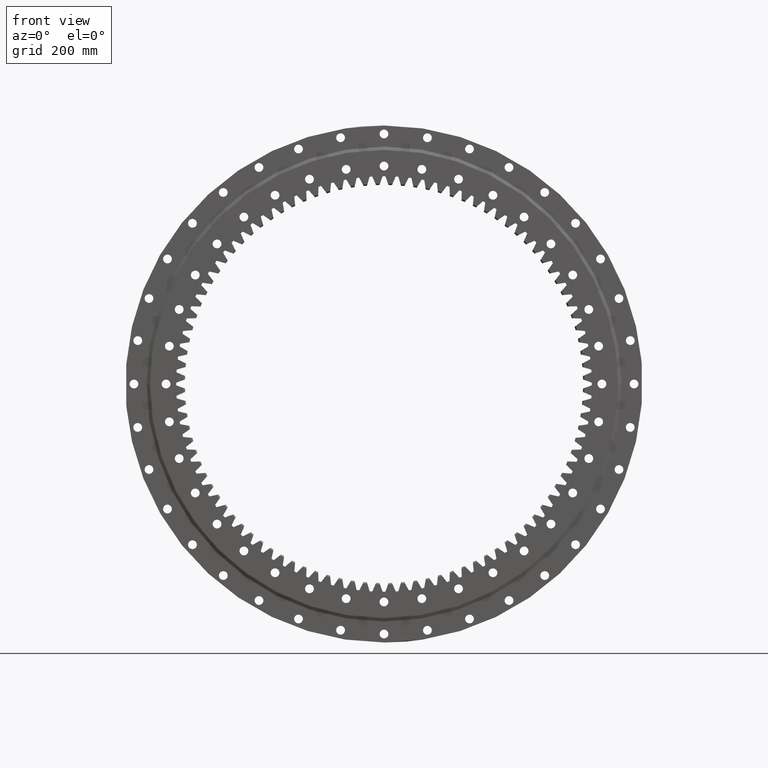
[diagram: clean part render]
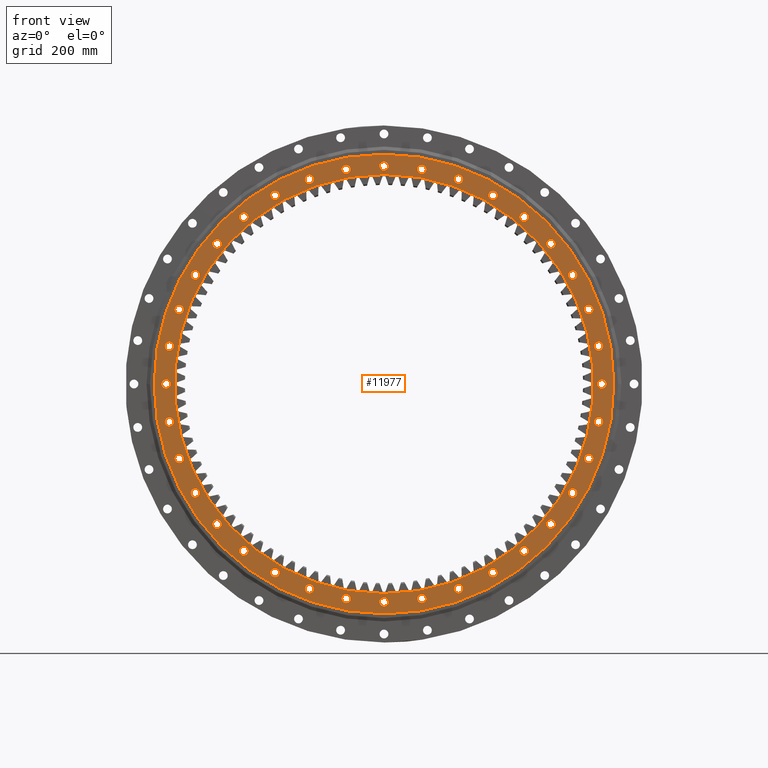
[diagram: same view with one face highlighted and labeled with its STEP entity id]
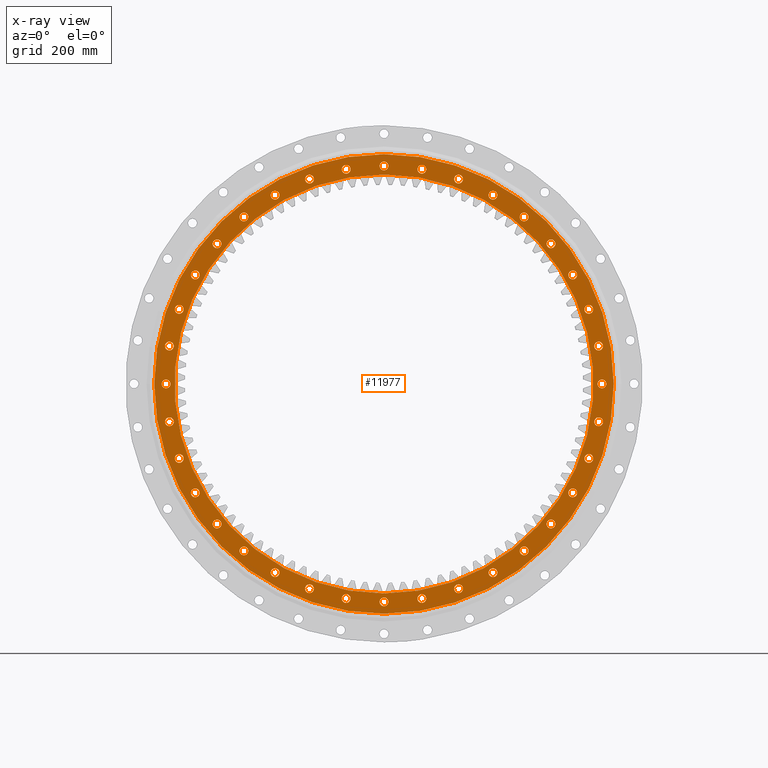
[diagram: x-ray of the same camera — body ghosted, the highlighted face saturated]
A machine part, front view. The second image highlights one B-rep face of the part: STEP entity #11977.
The next image is the same camera in x-ray: the body ghosted, the highlighted face saturated — about 0% of this face is hidden behind the body in this view.
In plain terms, the highlighted planar face has unit normal (0, 1, -0).
Its self-contained STEP definition (entity closure, byte-faithful):
#46 = VERTEX_POINT ( 'NONE', #4877 ) ;
#64 = AXIS2_PLACEMENT_3D ( 'NONE', #1920, #17623, #4175 ) ;
#80 = CIRCLE ( 'NONE', #2478, 13.00000000000003000 ) ;
#126 = AXIS2_PLACEMENT_3D ( 'NONE', #27517, #13944, #513 ) ;
#165 = DIRECTION ( 'NONE',  ( 0.9848077530122073500, 0.0000000000000000000, -0.1736481776669343600 ) ) ;
#177 = CARTESIAN_POINT ( 'NONE',  ( -322.5000000000009100, -64.99999999999990100, 571.5863854409624300 ) ) ;
#197 = CARTESIAN_POINT ( 'NONE',  ( -220.6029924450521400, -65.00000000000000000, -606.1017404069125400 ) ) ;
#245 = CIRCLE ( 'NONE', #19429, 13.00000000000001200 ) ;
#302 = AXIS2_PLACEMENT_3D ( 'NONE', #3889, #3896, #2134 ) ;
#319 = EDGE_LOOP ( 'NONE', ( #24717, #27611 ) ) ;
#359 = CARTESIAN_POINT ( 'NONE',  ( 220.6029924450480500, -64.99999999999994300, 593.1017404069140200 ) ) ;
#419 = CARTESIAN_POINT ( 'NONE',  ( 635.2010006928756000, -65.00000000000004300, -112.0030745951632800 ) ) ;
#429 = DIRECTION ( 'NONE',  ( -0.8660254037844431500, 0.0000000000000000000, -0.4999999999999921200 ) ) ;
#470 = EDGE_CURVE ( 'NONE', #10462, #5548, #9288, .T. ) ;
#506 = DIRECTION ( 'NONE',  ( -7.038473828917531600E-015, 0.0000000000000000000, -1.000000000000000000 ) ) ;
#512 = DIRECTION ( 'NONE',  ( -7.914688832368751900E-017, -1.000000000000000000, 6.617654413443253200E-017 ) ) ;
#513 = DIRECTION ( 'NONE',  ( 0.5000000000000022200, 0.0000000000000000000, 0.8660254037844372600 ) ) ;
#616 = CARTESIAN_POINT ( 'NONE',  ( 322.5000000000047700, -65.00000000000004300, -558.5863854409601600 ) ) ;
#660 = FACE_BOUND ( 'NONE', #3521, .T. ) ;
#676 = CARTESIAN_POINT ( 'NONE',  ( -494.0986658117383900, -64.99999999999995700, -401.5980082478207000 ) ) ;
#808 = EDGE_CURVE ( 'NONE', #28281, #21178, #7530, .T. ) ;
#838 = CARTESIAN_POINT ( 'NONE',  ( -112.0030745951655300, -64.99999999999998600, -635.2010006928752500 ) ) ;
#902 = ORIENTED_EDGE ( 'NONE', *, *, #10769, .F. ) ;
#916 = EDGE_LOOP ( 'NONE', ( #15448, #25351 ) ) ;
#929 = AXIS2_PLACEMENT_3D ( 'NONE', #616, #7305, #28946 ) ;
#931 = DIRECTION ( 'NONE',  ( -7.914688832368751900E-017, -1.000000000000000000, 6.617654413443253200E-017 ) ) ;
#948 = ORIENTED_EDGE ( 'NONE', *, *, #1432, .F. ) ;
#976 = VERTEX_POINT ( 'NONE', #18165 ) ;
#1009 = AXIS2_PLACEMENT_3D ( 'NONE', #16906, #3452, #19158 ) ;
#1156 = DIRECTION ( 'NONE',  ( -0.1736481776669374600, 0.0000000000000000000, -0.9848077530122068000 ) ) ;
#1234 = CARTESIAN_POINT ( 'NONE',  ( 645.0000000000000000, -65.00000000000002800, 7.042364726122071100E-012 ) ) ;
#1239 = CIRCLE ( 'NONE', #7258, 620.0000000000001100 ) ;
#1270 = AXIS2_PLACEMENT_3D ( 'NONE', #4223, #4319, #4404 ) ;
#1308 = EDGE_LOOP ( 'NONE', ( #2955, #20577 ) ) ;
#1344 = DIRECTION ( 'NONE',  ( -7.914688832368751900E-017, -1.000000000000000000, 6.617654413443254400E-017 ) ) ;
#1419 = DIRECTION ( 'NONE',  ( -5.551115123125783900E-017, -6.715058616684413500E-017, -1.000000000000000000 ) ) ;
#1432 = EDGE_CURVE ( 'NONE', #25501, #6504, #27256, .T. ) ;
#1438 = VERTEX_POINT ( 'NONE', #27134 ) ;
#1498 = CARTESIAN_POINT ( 'NONE',  ( -558.5863854409638000, -64.99999999999990100, 335.4999999999984700 ) ) ;
#1500 = DIRECTION ( 'NONE',  ( -0.9396926207859115400, 0.0000000000000000000, -0.3420201433256600500 ) ) ;
#1534 = CARTESIAN_POINT ( 'NONE',  ( 494.0986658117448100, -65.00000000000004300, -414.5980082478131400 ) ) ;
#1557 = EDGE_CURVE ( 'NONE', #9797, #976, #23646, .T. ) ;
#1596 = EDGE_CURVE ( 'NONE', #2013, #6705, #22939, .T. ) ;
#1661 = CIRCLE ( 'NONE', #11563, 12.99999999999995200 ) ;
#1682 = EDGE_CURVE ( 'NONE', #6504, #25501, #26163, .T. ) ;
#1703 = CARTESIAN_POINT ( 'NONE',  ( -606.1017404069098100, -64.99999999999992900, -220.6029924450595600 ) ) ;
#1726 = DIRECTION ( 'NONE',  ( 1.000000000000000000, 0.0000000000000000000, -3.546992490074405800E-015 ) ) ;
#1836 = AXIS2_PLACEMENT_3D ( 'NONE', #23664, #23719, #23831 ) ;
#1918 = VERTEX_POINT ( 'NONE', #24658 ) ;
#1920 = CARTESIAN_POINT ( 'NONE',  ( -606.1017404069098100, -64.99999999999992900, -220.6029924450595600 ) ) ;
#1950 = CIRCLE ( 'NONE', #22102, 13.00000000000001100 ) ;
#1992 = AXIS2_PLACEMENT_3D ( 'NONE', #26485, #26386, #26675 ) ;
#2013 = VERTEX_POINT ( 'NONE', #16854 ) ;
#2019 = CARTESIAN_POINT ( 'NONE',  ( 635.2010006928728700, -65.00000000000001400, 99.00307459517729600 ) ) ;
#2108 = DIRECTION ( 'NONE',  ( -7.914688832368751900E-017, -1.000000000000000000, 6.617654413443253200E-017 ) ) ;
#2116 = DIRECTION ( 'NONE',  ( 0.1736481776669250300, 0.0000000000000000000, -0.9848077530122090200 ) ) ;
#2124 = FACE_BOUND ( 'NONE', #8397, .T. ) ;
#2134 = DIRECTION ( 'NONE',  ( 0.7660444431189753500, 0.0000000000000000000, -0.6427876096865425800 ) ) ;
#2136 = CIRCLE ( 'NONE', #27348, 12.99999999999999500 ) ;
#2143 = CARTESIAN_POINT ( 'NONE',  ( 558.5863854409661800, -65.00000000000002800, -335.4999999999946600 ) ) ;
#2268 = CARTESIAN_POINT ( 'NONE',  ( -606.1017404069117400, -64.99999999999991500, 220.6029924450542400 ) ) ;
#2289 = CIRCLE ( 'NONE', #26123, 12.99999999999998000 ) ;
#2336 = CIRCLE ( 'NONE', #8899, 12.99999999999999500 ) ;
#2342 = ORIENTED_EDGE ( 'NONE', *, *, #17370, .F. ) ;
#2352 = CARTESIAN_POINT ( 'NONE',  ( -494.0986658117421400, -64.99999999999990100, 414.5980082478164400 ) ) ;
#2392 = DIRECTION ( 'NONE',  ( -7.914688832368751900E-017, -1.000000000000000000, 6.617654413443253200E-017 ) ) ;
#2438 = DIRECTION ( 'NONE',  ( -0.3420201433256751500, 0.0000000000000000000, -0.9396926207859061000 ) ) ;
#2457 = DIRECTION ( 'NONE',  ( -7.914688832368751900E-017, -1.000000000000000000, 6.617654413443253200E-017 ) ) ;
#2478 = AXIS2_PLACEMENT_3D ( 'NONE', #28631, #28570, #28708 ) ;
#2511 = EDGE_CURVE ( 'NONE', #26646, #22815, #7093, .T. ) ;
#2534 = CARTESIAN_POINT ( 'NONE',  ( 606.1017404069132200, -65.00000000000001400, -220.6029924450501200 ) ) ;
#2615 = CARTESIAN_POINT ( 'NONE',  ( 606.1017404069132200, -65.00000000000001400, -233.6029924450501500 ) ) ;
#2640 = DIRECTION ( 'NONE',  ( -1.000000000000000000, 0.0000000000000000000, 1.052995516776065800E-014 ) ) ;
#2737 = CARTESIAN_POINT ( 'NONE',  ( -645.0000000000000000, -64.99999999999991500, -2.529750848276954000E-012 ) ) ;
#2769 = VERTEX_POINT ( 'NONE', #9295 ) ;
#2804 = DIRECTION ( 'NONE',  ( -0.9848077530122062400, 0.0000000000000000000, 0.1736481776669405700 ) ) ;
#2922 = EDGE_CURVE ( 'NONE', #5186, #24064, #22212, .T. ) ;
#2928 = EDGE_CURVE ( 'NONE', #17073, #21109, #9557, .T. ) ;
#2955 = ORIENTED_EDGE ( 'NONE', *, *, #20176, .F. ) ;
#3008 = EDGE_CURVE ( 'NONE', #19489, #46, #8158, .T. ) ;
#3042 = EDGE_CURVE ( 'NONE', #22429, #19875, #12710, .T. ) ;
#3070 = FACE_OUTER_BOUND ( 'NONE', #18471, .T. ) ;
#3106 = VERTEX_POINT ( 'NONE', #16803 ) ;
#3208 = CARTESIAN_POINT ( 'NONE',  ( -220.6029924450521400, -65.00000000000000000, -606.1017404069125400 ) ) ;
#3257 = AXIS2_PLACEMENT_3D ( 'NONE', #1234, #14670, #1726 ) ;
#3340 = DIRECTION ( 'NONE',  ( 0.5000000000000022200, 0.0000000000000000000, 0.8660254037844372600 ) ) ;
#3354 = VERTEX_POINT ( 'NONE', #23495 ) ;
#3429 = CARTESIAN_POINT ( 'NONE',  ( -112.0030745951708000, -64.99999999999991500, 635.2010006928742300 ) ) ;
#3444 = EDGE_LOOP ( 'NONE', ( #5876, #902 ) ) ;
#3452 = DIRECTION ( 'NONE',  ( -7.914688832368751900E-017, -1.000000000000000000, 6.617654413443253200E-017 ) ) ;
#3471 = EDGE_CURVE ( 'NONE', #20315, #9083, #2136, .T. ) ;
#3500 = DIRECTION ( 'NONE',  ( -7.914688832368751900E-017, -1.000000000000000000, 6.617654413443251900E-017 ) ) ;
#3513 = DIRECTION ( 'NONE',  ( -0.8660254037844431500, 0.0000000000000000000, -0.4999999999999921200 ) ) ;
#3521 = EDGE_LOOP ( 'NONE', ( #28526, #17840 ) ) ;
#3524 = AXIS2_PLACEMENT_3D ( 'NONE', #22307, #20587, #8931 ) ;
#3535 = DIRECTION ( 'NONE',  ( -0.1736481776669163100, 0.0000000000000000000, 0.9848077530122104600 ) ) ;
#3614 = DIRECTION ( 'NONE',  ( -7.914688832368751900E-017, -1.000000000000000000, 6.617654413443253200E-017 ) ) ;
#3620 = VERTEX_POINT ( 'NONE', #27292 ) ;
#3637 = CARTESIAN_POINT ( 'NONE',  ( 2.954938013147308800E-014, -64.99999999999992900, 620.0000000000001100 ) ) ;
#3669 = CARTESIAN_POINT ( 'NONE',  ( -558.5863854409612900, -64.99999999999994300, -322.5000000000028400 ) ) ;
#3739 = EDGE_LOOP ( 'NONE', ( #5858, #20340 ) ) ;
#3769 = FACE_BOUND ( 'NONE', #3739, .T. ) ;
#3781 = DIRECTION ( 'NONE',  ( 0.7660444431189753500, 0.0000000000000000000, -0.6427876096865425800 ) ) ;
#3793 = VERTEX_POINT ( 'NONE', #12211 ) ;
#3794 = EDGE_LOOP ( 'NONE', ( #12521, #27401 ) ) ;
#3889 = CARTESIAN_POINT ( 'NONE',  ( 494.0986658117448100, -65.00000000000004300, -414.5980082478131400 ) ) ;
#3892 = DIRECTION ( 'NONE',  ( -7.914688832368751900E-017, -1.000000000000000000, 6.617654413443251900E-017 ) ) ;
#3896 = DIRECTION ( 'NONE',  ( -7.914688832368751900E-017, -1.000000000000000000, 6.617654413443253200E-017 ) ) ;
#3936 = CIRCLE ( 'NONE', #8647, 12.99999999999997500 ) ;
#4110 = ORIENTED_EDGE ( 'NONE', *, *, #16761, .F. ) ;
#4175 = DIRECTION ( 'NONE',  ( -0.9396926207859115400, 0.0000000000000000000, -0.3420201433256600500 ) ) ;
#4180 = ORIENTED_EDGE ( 'NONE', *, *, #15143, .F. ) ;
#4199 = VERTEX_POINT ( 'NONE', #11007 ) ;
#4223 = CARTESIAN_POINT ( 'NONE',  ( -112.0030745951708000, -64.99999999999991500, 635.2010006928742300 ) ) ;
#4264 = EDGE_CURVE ( 'NONE', #17436, #7946, #20024, .T. ) ;
#4289 = DIRECTION ( 'NONE',  ( -7.914688832368751900E-017, -1.000000000000000000, 6.617654413443253200E-017 ) ) ;
#4319 = DIRECTION ( 'NONE',  ( -7.914688832368751900E-017, -1.000000000000000000, 6.617654413443251900E-017 ) ) ;
#4347 = VERTEX_POINT ( 'NONE', #5143 ) ;
#4404 = DIRECTION ( 'NONE',  ( -0.1736481776669163100, 0.0000000000000000000, 0.9848077530122104600 ) ) ;
#4414 = CIRCLE ( 'NONE', #9280, 13.00000000000005900 ) ;
#4477 = CIRCLE ( 'NONE', #22634, 13.00000000000001200 ) ;
#4496 = EDGE_LOOP ( 'NONE', ( #11451, #5100 ) ) ;
#4498 = FACE_BOUND ( 'NONE', #23144, .T. ) ;
#4511 = CARTESIAN_POINT ( 'NONE',  ( -5.144547741039686300E-015, -64.99999999999997200, 2.657299779401134300E-015 ) ) ;
#4531 = CARTESIAN_POINT ( 'NONE',  ( -220.6029924450574800, -64.99999999999991500, 606.1017404069106100 ) ) ;
#4568 = CARTESIAN_POINT ( 'NONE',  ( -645.0000000000000000, -64.99999999999991500, -2.529750848276954000E-012 ) ) ;
#4574 = EDGE_CURVE ( 'NONE', #6705, #2013, #9848, .T. ) ;
#4611 = DIRECTION ( 'NONE',  ( -7.914688832368751900E-017, -1.000000000000000000, 6.617654413443253200E-017 ) ) ;
#4620 = DIRECTION ( 'NONE',  ( -0.7660444431189714600, 0.0000000000000000000, 0.6427876096865471300 ) ) ;
#4720 = CARTESIAN_POINT ( 'NONE',  ( 322.5000000000047700, -65.00000000000004300, -571.5863854409601600 ) ) ;
#4731 = VERTEX_POINT ( 'NONE', #13989 ) ;
#4751 = ORIENTED_EDGE ( 'NONE', *, *, #7561, .F. ) ;
#4784 = DIRECTION ( 'NONE',  ( 0.9396926207859074300, 0.0000000000000000000, -0.3420201433256713200 ) ) ;
#4800 = ORIENTED_EDGE ( 'NONE', *, *, #27665, .F. ) ;
#4877 = CARTESIAN_POINT ( 'NONE',  ( 635.2010006928756000, -65.00000000000004300, -125.0030745951633000 ) ) ;
#4935 = VERTEX_POINT ( 'NONE', #27250 ) ;
#5045 = CARTESIAN_POINT ( 'NONE',  ( -645.0000000000000000, -64.99999999999991500, -13.00000000000253300 ) ) ;
#5064 = CIRCLE ( 'NONE', #7918, 13.00000000000000900 ) ;
#5100 = ORIENTED_EDGE ( 'NONE', *, *, #22996, .F. ) ;
#5143 = CARTESIAN_POINT ( 'NONE',  ( -494.0986658117421400, -64.99999999999990100, 401.5980082478164400 ) ) ;
#5186 = VERTEX_POINT ( 'NONE', #13709 ) ;
#5200 = FACE_BOUND ( 'NONE', #6606, .T. ) ;
#5258 = EDGE_CURVE ( 'NONE', #28454, #1438, #5590, .T. ) ;
#5259 = CARTESIAN_POINT ( 'NONE',  ( 645.0000000000000000, -65.00000000000002800, 13.00000000000704700 ) ) ;
#5264 = CARTESIAN_POINT ( 'NONE',  ( -5.144547741039686300E-015, -64.99999999999997200, 2.657299779401134300E-015 ) ) ;
#5302 = DIRECTION ( 'NONE',  ( 7.914688832368751900E-017, 1.000000000000000000, -6.617654413443253200E-017 ) ) ;
#5366 = DIRECTION ( 'NONE',  ( -5.551115123125783900E-017, -6.122553444624025500E-017, -1.000000000000000000 ) ) ;
#5382 = CARTESIAN_POINT ( 'NONE',  ( 558.5863854409590200, -64.99999999999998600, 335.5000000000068200 ) ) ;
#5435 = DIRECTION ( 'NONE',  ( -7.914688832368751900E-017, -1.000000000000000000, 6.617654413443251900E-017 ) ) ;
#5470 = CARTESIAN_POINT ( 'NONE',  ( 494.0986658117356000, -64.99999999999998600, 427.5980082478241100 ) ) ;
#5511 = ORIENTED_EDGE ( 'NONE', *, *, #5258, .F. ) ;
#5548 = VERTEX_POINT ( 'NONE', #6805 ) ;
#5565 = CIRCLE ( 'NONE', #64, 12.99999999999998400 ) ;
#5590 = CIRCLE ( 'NONE', #28002, 12.99999999999996400 ) ;
#5671 = VERTEX_POINT ( 'NONE', #17251 ) ;
#5672 = AXIS2_PLACEMENT_3D ( 'NONE', #13051, #28913, #15286 ) ;
#5685 = DIRECTION ( 'NONE',  ( -7.914688832368751900E-017, -1.000000000000000000, 6.617654413443253200E-017 ) ) ;
#5692 = CIRCLE ( 'NONE', #8892, 13.00000000000003000 ) ;
#5710 = VERTEX_POINT ( 'NONE', #10492 ) ;
#5769 = DIRECTION ( 'NONE',  ( -7.914688832368751900E-017, -1.000000000000000000, 6.617654413443253200E-017 ) ) ;
#5834 = DIRECTION ( 'NONE',  ( -1.000000000000000000, 0.0000000000000000000, 1.052995516776065800E-014 ) ) ;
#5858 = ORIENTED_EDGE ( 'NONE', *, *, #24920, .F. ) ;
#5876 = ORIENTED_EDGE ( 'NONE', *, *, #3008, .F. ) ;
#5925 = FACE_BOUND ( 'NONE', #23303, .T. ) ;
#6009 = DIRECTION ( 'NONE',  ( -0.6427876096865307000, 0.0000000000000000000, 0.7660444431189851200 ) ) ;
#6079 = CARTESIAN_POINT ( 'NONE',  ( 414.5980082478225200, -65.00000000000002800, -481.0986658117369600 ) ) ;
#6080 = CIRCLE ( 'NONE', #25805, 13.00000000000001200 ) ;
#6133 = EDGE_CURVE ( 'NONE', #3793, #25595, #17825, .T. ) ;
#6167 = CARTESIAN_POINT ( 'NONE',  ( -414.5980082478191100, -64.99999999999991500, 494.0986658117400300 ) ) ;
#6185 = ORIENTED_EDGE ( 'NONE', *, *, #23025, .F. ) ;
#6198 = DIRECTION ( 'NONE',  ( -7.914688832368751900E-017, -1.000000000000000000, 6.617654413443253200E-017 ) ) ;
#6234 = EDGE_CURVE ( 'NONE', #21940, #3106, #4477, .T. ) ;
#6301 = DIRECTION ( 'NONE',  ( -7.914688832368751900E-017, -1.000000000000000000, 6.617654413443251900E-017 ) ) ;
#6324 = DIRECTION ( 'NONE',  ( -0.3420201433256751500, 0.0000000000000000000, -0.9396926207859061000 ) ) ;
#6349 = VERTEX_POINT ( 'NONE', #21455 ) ;
#6390 = EDGE_CURVE ( 'NONE', #20098, #5671, #1661, .T. ) ;
#6418 = DIRECTION ( 'NONE',  ( -7.914688832368751900E-017, -1.000000000000000000, 6.617654413443253200E-017 ) ) ;
#6476 = CARTESIAN_POINT ( 'NONE',  ( 220.6029924450614600, -65.00000000000002800, -606.1017404069091300 ) ) ;
#6504 = VERTEX_POINT ( 'NONE', #1498 ) ;
#6548 = EDGE_LOOP ( 'NONE', ( #15364, #25624 ) ) ;
#6567 = VERTEX_POINT ( 'NONE', #177 ) ;
#6606 = EDGE_LOOP ( 'NONE', ( #11954, #10535 ) ) ;
#6705 = VERTEX_POINT ( 'NONE', #16901 ) ;
#6750 = AXIS2_PLACEMENT_3D ( 'NONE', #419, #512, #165 ) ;
#6805 = CARTESIAN_POINT ( 'NONE',  ( 494.0986658117448100, -65.00000000000004300, -427.5980082478131400 ) ) ;
#6813 = DIRECTION ( 'NONE',  ( -0.3420201433256581100, 0.0000000000000000000, 0.9396926207859123100 ) ) ;
#6913 = ORIENTED_EDGE ( 'NONE', *, *, #13870, .F. ) ;
#6927 = DIRECTION ( 'NONE',  ( -7.914688832368751900E-017, -1.000000000000000000, 6.617654413443253200E-017 ) ) ;
#6939 = EDGE_LOOP ( 'NONE', ( #16688, #13575 ) ) ;
#6940 = ORIENTED_EDGE ( 'NONE', *, *, #11843, .F. ) ;
#6949 = CARTESIAN_POINT ( 'NONE',  ( 3.319977997195166100E-014, -64.99999999999991500, 690.7500000000000000 ) ) ;
#7033 = DIRECTION ( 'NONE',  ( 0.3420201433256638300, 0.0000000000000000000, -0.9396926207859102000 ) ) ;
#7034 = EDGE_CURVE ( 'NONE', #25127, #29244, #245, .T. ) ;
#7091 = DIRECTION ( 'NONE',  ( 7.914688832368751900E-017, 1.000000000000000000, -6.617654413443253200E-017 ) ) ;
#7093 = CIRCLE ( 'NONE', #1836, 13.00000000000003900 ) ;
#7123 = DIRECTION ( 'NONE',  ( -5.551115123125783900E-017, -6.617654413443253200E-017, -1.000000000000000000 ) ) ;
#7258 = AXIS2_PLACEMENT_3D ( 'NONE', #19286, #12099, #12119 ) ;
#7287 = CIRCLE ( 'NONE', #1270, 13.00000000000005300 ) ;
#7305 = DIRECTION ( 'NONE',  ( -7.914688832368751900E-017, -1.000000000000000000, 6.617654413443251900E-017 ) ) ;
#7346 = ORIENTED_EDGE ( 'NONE', *, *, #9778, .F. ) ;
#7421 = EDGE_CURVE ( 'NONE', #21808, #6567, #10392, .T. ) ;
#7500 = VERTEX_POINT ( 'NONE', #14435 ) ;
#7502 = CARTESIAN_POINT ( 'NONE',  ( 635.2010006928728700, -65.00000000000001400, 112.0030745951773100 ) ) ;
#7530 = CIRCLE ( 'NONE', #11778, 12.99999999999999800 ) ;
#7543 = CARTESIAN_POINT ( 'NONE',  ( 414.5980082478225200, -65.00000000000002800, -494.0986658117370200 ) ) ;
#7561 = EDGE_CURVE ( 'NONE', #10077, #23732, #25552, .T. ) ;
#7569 = CARTESIAN_POINT ( 'NONE',  ( -635.2010006928746900, -64.99999999999990100, 125.0030745951674600 ) ) ;
#7705 = ORIENTED_EDGE ( 'NONE', *, *, #2928, .F. ) ;
#7735 = CARTESIAN_POINT ( 'NONE',  ( 322.5000000000047700, -65.00000000000004300, -545.5863854409601600 ) ) ;
#7743 = FACE_BOUND ( 'NONE', #27461, .T. ) ;
#7835 = CIRCLE ( 'NONE', #20264, 680.0000000000000000 ) ;
#7861 = EDGE_CURVE ( 'NONE', #10517, #23215, #1239, .T. ) ;
#7873 = CARTESIAN_POINT ( 'NONE',  ( -645.0000000000000000, -64.99999999999991500, 12.99999999999747600 ) ) ;
#7895 = CARTESIAN_POINT ( 'NONE',  ( 112.0030745951752200, -65.00000000000001400, -648.2010006928732100 ) ) ;
#7918 = AXIS2_PLACEMENT_3D ( 'NONE', #20951, #20862, #21020 ) ;
#7946 = VERTEX_POINT ( 'NONE', #27294 ) ;
#7976 = ORIENTED_EDGE ( 'NONE', *, *, #1682, .F. ) ;
#8009 = ORIENTED_EDGE ( 'NONE', *, *, #12877, .F. ) ;
#8013 = ORIENTED_EDGE ( 'NONE', *, *, #6234, .F. ) ;
#8016 = DIRECTION ( 'NONE',  ( -7.914688832368751900E-017, -1.000000000000000000, 6.617654413443253200E-017 ) ) ;
#8023 = CARTESIAN_POINT ( 'NONE',  ( -9.295213262048194800E-012, -64.99999999999992900, 645.0000000000000000 ) ) ;
#8120 = FACE_BOUND ( 'NONE', #18062, .T. ) ;
#8158 = CIRCLE ( 'NONE', #6750, 12.99999999999998200 ) ;
#8213 = DIRECTION ( 'NONE',  ( 0.9848077530122084600, 0.0000000000000000000, 0.1736481776669281400 ) ) ;
#8242 = DIRECTION ( 'NONE',  ( 5.551115123128011200E-017, 0.0000000000000000000, 1.000000000000000000 ) ) ;
#8260 = AXIS2_PLACEMENT_3D ( 'NONE', #10719, #10588, #23469 ) ;
#8305 = AXIS2_PLACEMENT_3D ( 'NONE', #4531, #20225, #6813 ) ;
#8343 = CIRCLE ( 'NONE', #21974, 12.99999999999998900 ) ;
#8371 = EDGE_LOOP ( 'NONE', ( #28910, #27466 ) ) ;
#8397 = EDGE_LOOP ( 'NONE', ( #5511, #25594 ) ) ;
#8415 = AXIS2_PLACEMENT_3D ( 'NONE', #27507, #13935, #506 ) ;
#8583 = CIRCLE ( 'NONE', #14409, 13.00000000000001200 ) ;
#8647 = AXIS2_PLACEMENT_3D ( 'NONE', #17730, #4289, #19989 ) ;
#8713 = DIRECTION ( 'NONE',  ( -7.914688832368751900E-017, -1.000000000000000000, 6.617654413443253200E-017 ) ) ;
#8815 = CARTESIAN_POINT ( 'NONE',  ( 414.5980082478114900, -64.99999999999997200, 507.0986658117463400 ) ) ;
#8864 = CIRCLE ( 'NONE', #17090, 620.0000000000001100 ) ;
#8892 = AXIS2_PLACEMENT_3D ( 'NONE', #15119, #15095, #15056 ) ;
#8894 = VERTEX_POINT ( 'NONE', #7895 ) ;
#8899 = AXIS2_PLACEMENT_3D ( 'NONE', #27420, #13861, #429 ) ;
#8931 = DIRECTION ( 'NONE',  ( -0.3420201433256581100, 0.0000000000000000000, 0.9396926207859123100 ) ) ;
#9003 = ORIENTED_EDGE ( 'NONE', *, *, #21784, .F. ) ;
#9066 = FACE_BOUND ( 'NONE', #19912, .T. ) ;
#9067 = AXIS2_PLACEMENT_3D ( 'NONE', #23030, #9583, #25344 ) ;
#9083 = VERTEX_POINT ( 'NONE', #15132 ) ;
#9112 = CIRCLE ( 'NONE', #24328, 12.99999999999998000 ) ;
#9116 = CARTESIAN_POINT ( 'NONE',  ( -635.2010006928746900, -64.99999999999990100, 99.00307459516743300 ) ) ;
#9144 = CIRCLE ( 'NONE', #8305, 12.99999999999997300 ) ;
#9267 = EDGE_CURVE ( 'NONE', #12489, #20246, #12075, .T. ) ;
#9276 = CIRCLE ( 'NONE', #8415, 13.00000000000001100 ) ;
#9280 = AXIS2_PLACEMENT_3D ( 'NONE', #197, #15882, #2438 ) ;
#9288 = CIRCLE ( 'NONE', #302, 13.00000000000003200 ) ;
#9295 = CARTESIAN_POINT ( 'NONE',  ( -414.5980082478191100, -64.99999999999991500, 507.0986658117400300 ) ) ;
#9354 = EDGE_LOOP ( 'NONE', ( #7705, #18224 ) ) ;
#9412 = CARTESIAN_POINT ( 'NONE',  ( -635.2010006928736600, -64.99999999999992900, -112.0030745951730000 ) ) ;
#9446 = CARTESIAN_POINT ( 'NONE',  ( 112.0030745951752200, -65.00000000000001400, -635.2010006928732100 ) ) ;
#9557 = CIRCLE ( 'NONE', #25410, 13.00000000000005900 ) ;
#9582 = DIRECTION ( 'NONE',  ( -7.914688832368751900E-017, -1.000000000000000000, 6.617654413443253200E-017 ) ) ;
#9583 = DIRECTION ( 'NONE',  ( -7.914688832368751900E-017, -1.000000000000000000, 6.617654413443253200E-017 ) ) ;
#9618 = CARTESIAN_POINT ( 'NONE',  ( -414.5980082478191100, -64.99999999999991500, 494.0986658117400300 ) ) ;
#9634 = CARTESIAN_POINT ( 'NONE',  ( -220.6029924450574800, -64.99999999999991500, 593.1017404069104900 ) ) ;
#9669 = DIRECTION ( 'NONE',  ( -0.7660444431189714600, 0.0000000000000000000, 0.6427876096865471300 ) ) ;
#9670 = DIRECTION ( 'NONE',  ( -7.914688832368751900E-017, -1.000000000000000000, 6.617654413443253200E-017 ) ) ;
#9708 = ORIENTED_EDGE ( 'NONE', *, *, #22222, .F. ) ;
#9718 = DIRECTION ( 'NONE',  ( -7.914688832368751900E-017, -1.000000000000000000, 6.617654413443253200E-017 ) ) ;
#9738 = DIRECTION ( 'NONE',  ( -0.4999999999999888400, 0.0000000000000000000, 0.8660254037844449200 ) ) ;
#9745 = ORIENTED_EDGE ( 'NONE', *, *, #15402, .F. ) ;
#9748 = AXIS2_PLACEMENT_3D ( 'NONE', #10497, #9718, #2804 ) ;
#9776 = FACE_BOUND ( 'NONE', #27341, .T. ) ;
#9778 = EDGE_CURVE ( 'NONE', #11791, #4199, #19400, .T. ) ;
#9797 = VERTEX_POINT ( 'NONE', #26339 ) ;
#9848 = CIRCLE ( 'NONE', #15447, 13.00000000000000200 ) ;
#9976 = CARTESIAN_POINT ( 'NONE',  ( 558.5863854409661800, -65.00000000000002800, -322.4999999999946000 ) ) ;
#9988 = EDGE_CURVE ( 'NONE', #27811, #22823, #26529, .T. ) ;
#10021 = EDGE_CURVE ( 'NONE', #24064, #5186, #7835, .T. ) ;
#10077 = VERTEX_POINT ( 'NONE', #5259 ) ;
#10080 = AXIS2_PLACEMENT_3D ( 'NONE', #8023, #8016, #8242 ) ;
#10146 = DIRECTION ( 'NONE',  ( -7.914688832368751900E-017, -1.000000000000000000, 6.617654413443253200E-017 ) ) ;
#10183 = DIRECTION ( 'NONE',  ( 0.6427876096865353700, 0.0000000000000000000, -0.7660444431189813400 ) ) ;
#10216 = AXIS2_PLACEMENT_3D ( 'NONE', #24041, #10567, #26355 ) ;
#10299 = CARTESIAN_POINT ( 'NONE',  ( 558.5863854409661800, -65.00000000000002800, -322.4999999999946000 ) ) ;
#10301 = AXIS2_PLACEMENT_3D ( 'NONE', #2737, #2457, #2640 ) ;
#10332 = AXIS2_PLACEMENT_3D ( 'NONE', #6949, #7091, #7123 ) ;
#10392 = CIRCLE ( 'NONE', #18878, 12.99999999999996800 ) ;
#10462 = VERTEX_POINT ( 'NONE', #16237 ) ;
#10476 = FACE_BOUND ( 'NONE', #3444, .T. ) ;
#10492 = CARTESIAN_POINT ( 'NONE',  ( 558.5863854409661800, -65.00000000000002800, -309.4999999999946000 ) ) ;
#10497 = CARTESIAN_POINT ( 'NONE',  ( -635.2010006928746900, -64.99999999999990100, 112.0030745951674500 ) ) ;
#10517 = VERTEX_POINT ( 'NONE', #14068 ) ;
#10535 = ORIENTED_EDGE ( 'NONE', *, *, #22597, .F. ) ;
#10567 = DIRECTION ( 'NONE',  ( -7.914688832368751900E-017, -1.000000000000000000, 6.617654413443253200E-017 ) ) ;
#10588 = DIRECTION ( 'NONE',  ( -7.914688832368751900E-017, -1.000000000000000000, 6.617654413443253200E-017 ) ) ;
#10719 = CARTESIAN_POINT ( 'NONE',  ( 4.780913239458473200E-012, -65.00000000000000000, -645.0000000000000000 ) ) ;
#10734 = CARTESIAN_POINT ( 'NONE',  ( -494.0986658117421400, -64.99999999999990100, 414.5980082478164400 ) ) ;
#10769 = EDGE_CURVE ( 'NONE', #46, #19489, #20464, .T. ) ;
#10886 = AXIS2_PLACEMENT_3D ( 'NONE', #24409, #15370, #3340 ) ;
#10892 = EDGE_LOOP ( 'NONE', ( #24534, #11533 ) ) ;
#11007 = CARTESIAN_POINT ( 'NONE',  ( -414.5980082478148500, -64.99999999999997200, -481.0986658117433300 ) ) ;
#11056 = DIRECTION ( 'NONE',  ( -7.914688832368751900E-017, -1.000000000000000000, 6.617654413443253200E-017 ) ) ;
#11130 = AXIS2_PLACEMENT_3D ( 'NONE', #7543, #23652, #10183 ) ;
#11187 = FACE_BOUND ( 'NONE', #25252, .T. ) ;
#11216 = VERTEX_POINT ( 'NONE', #6079 ) ;
#11218 = ORIENTED_EDGE ( 'NONE', *, *, #28764, .F. ) ;
#11273 = AXIS2_PLACEMENT_3D ( 'NONE', #2352, #18063, #4620 ) ;
#11275 = CARTESIAN_POINT ( 'NONE',  ( 322.4999999999926700, -64.99999999999995700, 545.5863854409672100 ) ) ;
#11305 = EDGE_CURVE ( 'NONE', #28422, #17907, #21150, .T. ) ;
#11451 = ORIENTED_EDGE ( 'NONE', *, *, #9988, .F. ) ;
#11533 = ORIENTED_EDGE ( 'NONE', *, *, #24265, .F. ) ;
#11563 = AXIS2_PLACEMENT_3D ( 'NONE', #27956, #28152, #28443 ) ;
#11600 = CIRCLE ( 'NONE', #1009, 13.00000000000001200 ) ;
#11674 = DIRECTION ( 'NONE',  ( -0.9848077530122096900, 0.0000000000000000000, -0.1736481776669208900 ) ) ;
#11710 = DIRECTION ( 'NONE',  ( 0.1736481776669250300, 0.0000000000000000000, -0.9848077530122090200 ) ) ;
#11749 = EDGE_CURVE ( 'NONE', #1438, #28454, #16868, .T. ) ;
#11758 = VERTEX_POINT ( 'NONE', #24544 ) ;
#11778 = AXIS2_PLACEMENT_3D ( 'NONE', #28900, #28932, #28994 ) ;
#11791 = VERTEX_POINT ( 'NONE', #24800 ) ;
#11843 = EDGE_CURVE ( 'NONE', #19875, #22429, #21462, .T. ) ;
#11882 = DIRECTION ( 'NONE',  ( -0.6427876096865307000, 0.0000000000000000000, 0.7660444431189851200 ) ) ;
#11895 = FACE_BOUND ( 'NONE', #9354, .T. ) ;
#11954 = ORIENTED_EDGE ( 'NONE', *, *, #24567, .F. ) ;
#11977 = ADVANCED_FACE ( 'NONE', ( #14757, #26091, #22166, #12325, #20037, #14088, #8120, #2124, #25379, #19325, #13379, #13706, #7743, #660, #23851, #17843, #11895, #5925, #29253, #23145, #17136, #11187, #5200, #28529, #22419, #16432, #10476, #4498, #27807, #21724, #15735, #9776, #3769, #27069, #21014, #15014, #9066, #3070 ), #24580, .F. ) ;
#12022 = EDGE_CURVE ( 'NONE', #4731, #1918, #24912, .T. ) ;
#12075 = CIRCLE ( 'NONE', #10886, 12.99999999999995400 ) ;
#12097 = CIRCLE ( 'NONE', #25562, 13.00000000000000900 ) ;
#12099 = DIRECTION ( 'NONE',  ( 7.914688832368751900E-017, 1.000000000000000000, -6.617654413443253200E-017 ) ) ;
#12119 = DIRECTION ( 'NONE',  ( -5.551115123125783900E-017, -6.715058616684413500E-017, -1.000000000000000000 ) ) ;
#12201 = AXIS2_PLACEMENT_3D ( 'NONE', #19104, #5685, #21406 ) ;
#12211 = CARTESIAN_POINT ( 'NONE',  ( 112.0030745951611800, -64.99999999999994300, 622.2010006928758200 ) ) ;
#12248 = DIRECTION ( 'NONE',  ( 0.8660254037844354900, 0.0000000000000000000, -0.5000000000000054400 ) ) ;
#12325 = FACE_BOUND ( 'NONE', #25168, .T. ) ;
#12414 = DIRECTION ( 'NONE',  ( -7.914688832368751900E-017, -1.000000000000000000, 6.617654413443251900E-017 ) ) ;
#12489 = VERTEX_POINT ( 'NONE', #22786 ) ;
#12521 = ORIENTED_EDGE ( 'NONE', *, *, #13164, .F. ) ;
#12524 = CIRCLE ( 'NONE', #10301, 13.00000000000001100 ) ;
#12529 = EDGE_CURVE ( 'NONE', #6349, #3354, #8343, .T. ) ;
#12562 = DIRECTION ( 'NONE',  ( 0.8660254037844354900, 0.0000000000000000000, -0.5000000000000054400 ) ) ;
#12710 = CIRCLE ( 'NONE', #9748, 12.99999999999999600 ) ;
#12766 = AXIS2_PLACEMENT_3D ( 'NONE', #10734, #9582, #9669 ) ;
#12791 = CARTESIAN_POINT ( 'NONE',  ( -494.0986658117383900, -64.99999999999995700, -427.5980082478207600 ) ) ;
#12860 = EDGE_CURVE ( 'NONE', #7946, #17436, #7287, .T. ) ;
#12872 = CIRCLE ( 'NONE', #12766, 13.00000000000002700 ) ;
#12877 = EDGE_CURVE ( 'NONE', #24880, #19962, #12524, .T. ) ;
#12929 = ORIENTED_EDGE ( 'NONE', *, *, #23676, .F. ) ;
#12953 = DIRECTION ( 'NONE',  ( -0.9396926207859043200, 0.0000000000000000000, 0.3420201433256797600 ) ) ;
#13051 = CARTESIAN_POINT ( 'NONE',  ( 494.0986658117356000, -64.99999999999998600, 414.5980082478241100 ) ) ;
#13093 = AXIS2_PLACEMENT_3D ( 'NONE', #2534, #18252, #4784 ) ;
#13098 = EDGE_CURVE ( 'NONE', #20731, #22610, #14268, .T. ) ;
#13126 = CARTESIAN_POINT ( 'NONE',  ( 558.5863854409590200, -64.99999999999998600, 322.5000000000067600 ) ) ;
#13156 = DIRECTION ( 'NONE',  ( -7.914688832368751900E-017, -1.000000000000000000, 6.617654413443253200E-017 ) ) ;
#13164 = EDGE_CURVE ( 'NONE', #4935, #4347, #12872, .T. ) ;
#13183 = DIRECTION ( 'NONE',  ( 0.8660254037844413700, 0.0000000000000000000, 0.4999999999999953400 ) ) ;
#13208 = CARTESIAN_POINT ( 'NONE',  ( 494.0986658117356000, -64.99999999999998600, 401.5980082478241100 ) ) ;
#13379 = FACE_BOUND ( 'NONE', #10892, .T. ) ;
#13526 = EDGE_CURVE ( 'NONE', #3354, #6349, #23753, .T. ) ;
#13535 = CARTESIAN_POINT ( 'NONE',  ( -322.4999999999966500, -64.99999999999998600, -571.5863854409649300 ) ) ;
#13564 = CIRCLE ( 'NONE', #13802, 12.99999999999995200 ) ;
#13575 = ORIENTED_EDGE ( 'NONE', *, *, #12860, .F. ) ;
#13697 = ORIENTED_EDGE ( 'NONE', *, *, #19010, .F. ) ;
#13706 = FACE_BOUND ( 'NONE', #6548, .T. ) ;
#13709 = CARTESIAN_POINT ( 'NONE',  ( 3.299876953783409300E-014, -64.99999999999992900, 680.0000000000000000 ) ) ;
#13802 = AXIS2_PLACEMENT_3D ( 'NONE', #9412, #25162, #11674 ) ;
#13838 = CIRCLE ( 'NONE', #19362, 12.99999999999996100 ) ;
#13861 = DIRECTION ( 'NONE',  ( -7.914688832368751900E-017, -1.000000000000000000, 6.617654413443253200E-017 ) ) ;
#13867 = AXIS2_PLACEMENT_3D ( 'NONE', #1534, #17248, #3781 ) ;
#13870 = EDGE_CURVE ( 'NONE', #16621, #21948, #16669, .T. ) ;
#13935 = DIRECTION ( 'NONE',  ( -7.914688832368751900E-017, -1.000000000000000000, 6.617654413443253200E-017 ) ) ;
#13944 = DIRECTION ( 'NONE',  ( -7.914688832368751900E-017, -1.000000000000000000, 6.617654413443253200E-017 ) ) ;
#13989 = CARTESIAN_POINT ( 'NONE',  ( -606.1017404069098100, -64.99999999999992900, -207.6029924450595300 ) ) ;
#14063 = CARTESIAN_POINT ( 'NONE',  ( 112.0030745951752200, -65.00000000000001400, -635.2010006928732100 ) ) ;
#14064 = CARTESIAN_POINT ( 'NONE',  ( 606.1017404069083300, -65.00000000000000000, 207.6029924450635300 ) ) ;
#14068 = CARTESIAN_POINT ( 'NONE',  ( -1.152125489424225500E-013, -65.00000000000001400, -620.0000000000001100 ) ) ;
#14088 = FACE_BOUND ( 'NONE', #3794, .T. ) ;
#14173 = CARTESIAN_POINT ( 'NONE',  ( -112.0030745951708200, -64.99999999999991500, 648.2010006928742300 ) ) ;
#14253 = AXIS2_PLACEMENT_3D ( 'NONE', #7502, #8713, #8213 ) ;
#14268 = CIRCLE ( 'NONE', #8260, 13.00000000000001100 ) ;
#14275 = DIRECTION ( 'NONE',  ( 0.9848077530122073500, 0.0000000000000000000, -0.1736481776669343600 ) ) ;
#14308 = DIRECTION ( 'NONE',  ( -7.914688832368751900E-017, -1.000000000000000000, 6.617654413443253200E-017 ) ) ;
#14370 = CARTESIAN_POINT ( 'NONE',  ( 635.2010006928756000, -65.00000000000004300, -112.0030745951632800 ) ) ;
#14377 = EDGE_CURVE ( 'NONE', #18958, #23523, #23361, .T. ) ;
#14409 = AXIS2_PLACEMENT_3D ( 'NONE', #9618, #25385, #11882 ) ;
#14435 = CARTESIAN_POINT ( 'NONE',  ( -322.4999999999966500, -64.99999999999998600, -545.5863854409649300 ) ) ;
#14510 = DIRECTION ( 'NONE',  ( -7.914688832368751900E-017, -1.000000000000000000, 6.617654413443251900E-017 ) ) ;
#14564 = EDGE_CURVE ( 'NONE', #4199, #11791, #20521, .T. ) ;
#14577 = AXIS2_PLACEMENT_3D ( 'NONE', #6476, #6927, #7033 ) ;
#14586 = ORIENTED_EDGE ( 'NONE', *, *, #20569, .T. ) ;
#14670 = DIRECTION ( 'NONE',  ( -7.914688832368751900E-017, -1.000000000000000000, 6.617654413443253200E-017 ) ) ;
#14740 = EDGE_LOOP ( 'NONE', ( #6913, #9003 ) ) ;
#14744 = EDGE_CURVE ( 'NONE', #15087, #7500, #5064, .T. ) ;
#14757 = FACE_BOUND ( 'NONE', #21337, .T. ) ;
#14832 = CIRCLE ( 'NONE', #12201, 13.00000000000002100 ) ;
#14848 = CARTESIAN_POINT ( 'NONE',  ( -414.5980082478148500, -64.99999999999997200, -494.0986658117433300 ) ) ;
#14853 = DIRECTION ( 'NONE',  ( 7.914688832368751900E-017, 1.000000000000000000, -6.617654413443253200E-017 ) ) ;
#14926 = VERTEX_POINT ( 'NONE', #18339 ) ;
#15014 = FACE_BOUND ( 'NONE', #1308, .T. ) ;
#15056 = DIRECTION ( 'NONE',  ( 0.3420201433256694900, 0.0000000000000000000, 0.9396926207859082100 ) ) ;
#15087 = VERTEX_POINT ( 'NONE', #13535 ) ;
#15095 = DIRECTION ( 'NONE',  ( -7.914688832368751900E-017, -1.000000000000000000, 6.617654413443253200E-017 ) ) ;
#15119 = CARTESIAN_POINT ( 'NONE',  ( 220.6029924450480500, -64.99999999999994300, 606.1017404069140200 ) ) ;
#15132 = CARTESIAN_POINT ( 'NONE',  ( -558.5863854409612900, -64.99999999999994300, -309.5000000000028400 ) ) ;
#15143 = EDGE_CURVE ( 'NONE', #3620, #8894, #13838, .T. ) ;
#15286 = DIRECTION ( 'NONE',  ( 0.7660444431189773500, 0.0000000000000000000, 0.6427876096865400300 ) ) ;
#15293 = VERTEX_POINT ( 'NONE', #2615 ) ;
#15357 = EDGE_CURVE ( 'NONE', #11758, #2769, #27641, .T. ) ;
#15364 = ORIENTED_EDGE ( 'NONE', *, *, #12022, .F. ) ;
#15370 = DIRECTION ( 'NONE',  ( -7.914688832368751900E-017, -1.000000000000000000, 6.617654413443253200E-017 ) ) ;
#15402 = EDGE_CURVE ( 'NONE', #19962, #24880, #26188, .T. ) ;
#15427 = EDGE_LOOP ( 'NONE', ( #19503, #8013 ) ) ;
#15447 = AXIS2_PLACEMENT_3D ( 'NONE', #29272, #28355, #27145 ) ;
#15448 = ORIENTED_EDGE ( 'NONE', *, *, #470, .F. ) ;
#15578 = AXIS2_PLACEMENT_3D ( 'NONE', #14370, #14308, #14275 ) ;
#15726 = VERTEX_POINT ( 'NONE', #359 ) ;
#15735 = FACE_BOUND ( 'NONE', #319, .T. ) ;
#15805 = AXIS2_PLACEMENT_3D ( 'NONE', #6167, #6301, #6009 ) ;
#15842 = CARTESIAN_POINT ( 'NONE',  ( 606.1017404069132200, -65.00000000000001400, -220.6029924450501200 ) ) ;
#15882 = DIRECTION ( 'NONE',  ( -7.914688832368751900E-017, -1.000000000000000000, 6.617654413443253200E-017 ) ) ;
#15914 = CIRCLE ( 'NONE', #11273, 13.00000000000002700 ) ;
#15978 = AXIS2_PLACEMENT_3D ( 'NONE', #25483, #25488, #25515 ) ;
#16048 = DIRECTION ( 'NONE',  ( -0.9848077530122062400, 0.0000000000000000000, 0.1736481776669405700 ) ) ;
#16081 = VERTEX_POINT ( 'NONE', #21665 ) ;
#16237 = CARTESIAN_POINT ( 'NONE',  ( 494.0986658117448100, -65.00000000000004300, -401.5980082478130800 ) ) ;
#16324 = CARTESIAN_POINT ( 'NONE',  ( -606.1017404069117400, -64.99999999999991500, 220.6029924450542400 ) ) ;
#16344 = AXIS2_PLACEMENT_3D ( 'NONE', #1703, #931, #1500 ) ;
#16432 = FACE_BOUND ( 'NONE', #26689, .T. ) ;
#16621 = VERTEX_POINT ( 'NONE', #19473 ) ;
#16669 = CIRCLE ( 'NONE', #3524, 12.99999999999997300 ) ;
#16688 = ORIENTED_EDGE ( 'NONE', *, *, #4264, .F. ) ;
#16761 = EDGE_CURVE ( 'NONE', #14926, #15726, #80, .T. ) ;
#16803 = CARTESIAN_POINT ( 'NONE',  ( 606.1017404069083300, -65.00000000000000000, 233.6029924450635600 ) ) ;
#16854 = CARTESIAN_POINT ( 'NONE',  ( 220.6029924450614600, -65.00000000000002800, -593.1017404069091300 ) ) ;
#16868 = CIRCLE ( 'NONE', #21446, 12.99999999999996400 ) ;
#16901 = CARTESIAN_POINT ( 'NONE',  ( 220.6029924450614600, -65.00000000000002800, -619.1017404069091300 ) ) ;
#16906 = CARTESIAN_POINT ( 'NONE',  ( 606.1017404069083300, -65.00000000000000000, 220.6029924450635300 ) ) ;
#16930 = DIRECTION ( 'NONE',  ( 7.914688832368751900E-017, 1.000000000000000000, -6.617654413443253200E-017 ) ) ;
#17069 = ORIENTED_EDGE ( 'NONE', *, *, #9267, .F. ) ;
#17073 = VERTEX_POINT ( 'NONE', #20548 ) ;
#17090 = AXIS2_PLACEMENT_3D ( 'NONE', #28456, #14853, #1419 ) ;
#17136 = FACE_BOUND ( 'NONE', #19853, .T. ) ;
#17248 = DIRECTION ( 'NONE',  ( -7.914688832368751900E-017, -1.000000000000000000, 6.617654413443253200E-017 ) ) ;
#17251 = CARTESIAN_POINT ( 'NONE',  ( -635.2010006928736600, -64.99999999999992900, -125.0030745951730200 ) ) ;
#17302 = AXIS2_PLACEMENT_3D ( 'NONE', #4568, #5769, #5834 ) ;
#17339 = CARTESIAN_POINT ( 'NONE',  ( -494.0986658117383900, -64.99999999999995700, -414.5980082478207000 ) ) ;
#17370 = EDGE_CURVE ( 'NONE', #15726, #14926, #5692, .T. ) ;
#17434 = CARTESIAN_POINT ( 'NONE',  ( -635.2010006928736600, -64.99999999999992900, -99.00307459517300400 ) ) ;
#17436 = VERTEX_POINT ( 'NONE', #14173 ) ;
#17623 = DIRECTION ( 'NONE',  ( -7.914688832368751900E-017, -1.000000000000000000, 6.617654413443253200E-017 ) ) ;
#17658 = DIRECTION ( 'NONE',  ( -5.551115123125783900E-017, -6.122553444624025500E-017, -1.000000000000000000 ) ) ;
#17675 = CARTESIAN_POINT ( 'NONE',  ( 112.0030745951611800, -64.99999999999994300, 635.2010006928759400 ) ) ;
#17730 = CARTESIAN_POINT ( 'NONE',  ( 112.0030745951611800, -64.99999999999994300, 635.2010006928759400 ) ) ;
#17735 = ORIENTED_EDGE ( 'NONE', *, *, #28090, .F. ) ;
#17766 = DIRECTION ( 'NONE',  ( -7.914688832368751900E-017, -1.000000000000000000, 6.617654413443253200E-017 ) ) ;
#17825 = CIRCLE ( 'NONE', #19602, 12.99999999999997500 ) ;
#17827 = DIRECTION ( 'NONE',  ( 0.1736481776669312500, 0.0000000000000000000, 0.9848077530122079100 ) ) ;
#17840 = ORIENTED_EDGE ( 'NONE', *, *, #7034, .F. ) ;
#17843 = FACE_BOUND ( 'NONE', #8371, .T. ) ;
#17876 = CIRCLE ( 'NONE', #23604, 13.00000000000004100 ) ;
#17907 = VERTEX_POINT ( 'NONE', #5382 ) ;
#17946 = CIRCLE ( 'NONE', #26616, 12.99999999999996800 ) ;
#18057 = CARTESIAN_POINT ( 'NONE',  ( -322.4999999999966500, -64.99999999999998600, -558.5863854409649300 ) ) ;
#18062 = EDGE_LOOP ( 'NONE', ( #7976, #948 ) ) ;
#18063 = DIRECTION ( 'NONE',  ( -7.914688832368751900E-017, -1.000000000000000000, 6.617654413443253200E-017 ) ) ;
#18076 = CARTESIAN_POINT ( 'NONE',  ( -322.5000000000009100, -64.99999999999990100, 545.5863854409624300 ) ) ;
#18097 = DIRECTION ( 'NONE',  ( 0.9396926207859074300, 0.0000000000000000000, -0.3420201433256713200 ) ) ;
#18165 = CARTESIAN_POINT ( 'NONE',  ( -9.293292589327774100E-012, -64.99999999999992900, 632.0000000000000000 ) ) ;
#18224 = ORIENTED_EDGE ( 'NONE', *, *, #24220, .F. ) ;
#18252 = DIRECTION ( 'NONE',  ( -7.914688832368751900E-017, -1.000000000000000000, 6.617654413443253200E-017 ) ) ;
#18256 = ORIENTED_EDGE ( 'NONE', *, *, #1596, .F. ) ;
#18339 = CARTESIAN_POINT ( 'NONE',  ( 220.6029924450480500, -64.99999999999994300, 619.1017404069140200 ) ) ;
#18470 = AXIS2_PLACEMENT_3D ( 'NONE', #9446, #25199, #11710 ) ;
#18471 = EDGE_LOOP ( 'NONE', ( #23330, #22731 ) ) ;
#18472 = CIRCLE ( 'NONE', #126, 12.99999999999995400 ) ;
#18484 = ORIENTED_EDGE ( 'NONE', *, *, #15357, .F. ) ;
#18512 = EDGE_LOOP ( 'NONE', ( #4110, #2342 ) ) ;
#18601 = CARTESIAN_POINT ( 'NONE',  ( -635.2010006928746900, -64.99999999999990100, 112.0030745951674500 ) ) ;
#18632 = ORIENTED_EDGE ( 'NONE', *, *, #19167, .F. ) ;
#18783 = CIRCLE ( 'NONE', #20184, 13.00000000000003900 ) ;
#18815 = CARTESIAN_POINT ( 'NONE',  ( 414.5980082478225200, -65.00000000000002800, -507.0986658117370200 ) ) ;
#18864 = CARTESIAN_POINT ( 'NONE',  ( 414.5980082478114900, -64.99999999999997200, 494.0986658117463400 ) ) ;
#18878 = AXIS2_PLACEMENT_3D ( 'NONE', #19120, #21029, #9738 ) ;
#18903 = CARTESIAN_POINT ( 'NONE',  ( 414.5980082478114900, -64.99999999999997200, 481.0986658117463400 ) ) ;
#18958 = VERTEX_POINT ( 'NONE', #7735 ) ;
#19010 = EDGE_CURVE ( 'NONE', #23523, #18958, #28211, .T. ) ;
#19011 = EDGE_CURVE ( 'NONE', #3106, #21940, #11600, .T. ) ;
#19104 = CARTESIAN_POINT ( 'NONE',  ( 558.5863854409590200, -64.99999999999998600, 322.5000000000067600 ) ) ;
#19120 = CARTESIAN_POINT ( 'NONE',  ( -322.5000000000009100, -64.99999999999990100, 558.5863854409624300 ) ) ;
#19158 = DIRECTION ( 'NONE',  ( 0.9396926207859094300, 0.0000000000000000000, 0.3420201433256657200 ) ) ;
#19167 = EDGE_CURVE ( 'NONE', #16081, #15293, #17876, .T. ) ;
#19185 = CARTESIAN_POINT ( 'NONE',  ( 4.782833912178893100E-012, -65.00000000000000000, -658.0000000000000000 ) ) ;
#19286 = CARTESIAN_POINT ( 'NONE',  ( -5.144547741039686300E-015, -64.99999999999997200, 6.074067338871765800E-015 ) ) ;
#19308 = EDGE_LOOP ( 'NONE', ( #26002, #7346 ) ) ;
#19312 = AXIS2_PLACEMENT_3D ( 'NONE', #5264, #5302, #5366 ) ;
#19325 = FACE_BOUND ( 'NONE', #28026, .T. ) ;
#19362 = AXIS2_PLACEMENT_3D ( 'NONE', #14063, #14510, #2116 ) ;
#19400 = CIRCLE ( 'NONE', #28502, 12.99999999999999100 ) ;
#19429 = AXIS2_PLACEMENT_3D ( 'NONE', #26106, #27403, #27197 ) ;
#19473 = CARTESIAN_POINT ( 'NONE',  ( -220.6029924450574800, -64.99999999999991500, 619.1017404069106100 ) ) ;
#19489 = VERTEX_POINT ( 'NONE', #23694 ) ;
#19503 = ORIENTED_EDGE ( 'NONE', *, *, #19011, .F. ) ;
#19520 = ORIENTED_EDGE ( 'NONE', *, *, #21182, .F. ) ;
#19592 = DIRECTION ( 'NONE',  ( -0.7660444431189851200, 0.0000000000000000000, -0.6427876096865307000 ) ) ;
#19602 = AXIS2_PLACEMENT_3D ( 'NONE', #17675, #17766, #17827 ) ;
#19612 = CARTESIAN_POINT ( 'NONE',  ( -9.295213262048194800E-012, -64.99999999999992900, 645.0000000000000000 ) ) ;
#19683 = EDGE_CURVE ( 'NONE', #4347, #4935, #15914, .T. ) ;
#19779 = ORIENTED_EDGE ( 'NONE', *, *, #808, .F. ) ;
#19845 = CIRCLE ( 'NONE', #10216, 13.00000000000000400 ) ;
#19853 = EDGE_LOOP ( 'NONE', ( #18256, #22825 ) ) ;
#19875 = VERTEX_POINT ( 'NONE', #7569 ) ;
#19912 = EDGE_LOOP ( 'NONE', ( #24077, #27008 ) ) ;
#19958 = EDGE_CURVE ( 'NONE', #17907, #28422, #14832, .T. ) ;
#19962 = VERTEX_POINT ( 'NONE', #7873 ) ;
#19989 = DIRECTION ( 'NONE',  ( 0.1736481776669312500, 0.0000000000000000000, 0.9848077530122079100 ) ) ;
#20024 = CIRCLE ( 'NONE', #25616, 13.00000000000005300 ) ;
#20037 = FACE_BOUND ( 'NONE', #23913, .T. ) ;
#20089 = EDGE_CURVE ( 'NONE', #29244, #25127, #6080, .T. ) ;
#20098 = VERTEX_POINT ( 'NONE', #17434 ) ;
#20176 = EDGE_CURVE ( 'NONE', #25595, #3793, #3936, .T. ) ;
#20184 = AXIS2_PLACEMENT_3D ( 'NONE', #18864, #5435, #21148 ) ;
#20225 = DIRECTION ( 'NONE',  ( -7.914688832368751900E-017, -1.000000000000000000, 6.617654413443251900E-017 ) ) ;
#20246 = VERTEX_POINT ( 'NONE', #11275 ) ;
#20264 = AXIS2_PLACEMENT_3D ( 'NONE', #4511, #16930, #17658 ) ;
#20306 = DIRECTION ( 'NONE',  ( -0.5000000000000086600, 0.0000000000000000000, -0.8660254037844336000 ) ) ;
#20315 = VERTEX_POINT ( 'NONE', #20480 ) ;
#20340 = ORIENTED_EDGE ( 'NONE', *, *, #2511, .F. ) ;
#20464 = CIRCLE ( 'NONE', #15578, 12.99999999999998200 ) ;
#20480 = CARTESIAN_POINT ( 'NONE',  ( -558.5863854409612900, -64.99999999999994300, -335.5000000000028400 ) ) ;
#20521 = CIRCLE ( 'NONE', #15978, 12.99999999999999100 ) ;
#20548 = CARTESIAN_POINT ( 'NONE',  ( -220.6029924450521400, -65.00000000000000000, -593.1017404069125400 ) ) ;
#20569 = EDGE_CURVE ( 'NONE', #23215, #10517, #8864, .T. ) ;
#20577 = ORIENTED_EDGE ( 'NONE', *, *, #6133, .F. ) ;
#20587 = DIRECTION ( 'NONE',  ( -7.914688832368751900E-017, -1.000000000000000000, 6.617654413443251900E-017 ) ) ;
#20731 = VERTEX_POINT ( 'NONE', #24512 ) ;
#20862 = DIRECTION ( 'NONE',  ( -7.914688832368751900E-017, -1.000000000000000000, 6.617654413443253200E-017 ) ) ;
#20951 = CARTESIAN_POINT ( 'NONE',  ( -322.4999999999966500, -64.99999999999998600, -558.5863854409649300 ) ) ;
#21014 = FACE_BOUND ( 'NONE', #18512, .T. ) ;
#21020 = DIRECTION ( 'NONE',  ( -0.5000000000000086600, 0.0000000000000000000, -0.8660254037844336000 ) ) ;
#21029 = DIRECTION ( 'NONE',  ( -7.914688832368751900E-017, -1.000000000000000000, 6.617654413443253200E-017 ) ) ;
#21032 = CIRCLE ( 'NONE', #11130, 13.00000000000000400 ) ;
#21069 = ORIENTED_EDGE ( 'NONE', *, *, #14377, .F. ) ;
#21109 = VERTEX_POINT ( 'NONE', #23953 ) ;
#21148 = DIRECTION ( 'NONE',  ( 0.6427876096865380300, 0.0000000000000000000, 0.7660444431189792300 ) ) ;
#21149 = AXIS2_PLACEMENT_3D ( 'NONE', #25920, #12414, #28250 ) ;
#21150 = CIRCLE ( 'NONE', #27171, 13.00000000000002100 ) ;
#21178 = VERTEX_POINT ( 'NONE', #13208 ) ;
#21182 = EDGE_CURVE ( 'NONE', #6567, #21808, #17946, .T. ) ;
#21337 = EDGE_LOOP ( 'NONE', ( #14586, #27369 ) ) ;
#21406 = DIRECTION ( 'NONE',  ( 0.8660254037844413700, 0.0000000000000000000, 0.4999999999999953400 ) ) ;
#21446 = AXIS2_PLACEMENT_3D ( 'NONE', #16324, #10146, #24739 ) ;
#21455 = CARTESIAN_POINT ( 'NONE',  ( -112.0030745951655300, -64.99999999999998600, -622.2010006928752500 ) ) ;
#21462 = CIRCLE ( 'NONE', #26021, 12.99999999999999600 ) ;
#21665 = CARTESIAN_POINT ( 'NONE',  ( 606.1017404069132200, -65.00000000000001400, -207.6029924450501200 ) ) ;
#21724 = FACE_BOUND ( 'NONE', #15427, .T. ) ;
#21756 = ORIENTED_EDGE ( 'NONE', *, *, #12529, .F. ) ;
#21784 = EDGE_CURVE ( 'NONE', #21948, #16621, #9144, .T. ) ;
#21808 = VERTEX_POINT ( 'NONE', #18076 ) ;
#21812 = ORIENTED_EDGE ( 'NONE', *, *, #25814, .F. ) ;
#21901 = DIRECTION ( 'NONE',  ( 5.551115123128011200E-017, 0.0000000000000000000, 1.000000000000000000 ) ) ;
#21940 = VERTEX_POINT ( 'NONE', #14064 ) ;
#21948 = VERTEX_POINT ( 'NONE', #9634 ) ;
#21974 = AXIS2_PLACEMENT_3D ( 'NONE', #23281, #24585, #25666 ) ;
#22056 = CARTESIAN_POINT ( 'NONE',  ( -606.1017404069117400, -64.99999999999991500, 233.6029924450542400 ) ) ;
#22091 = EDGE_CURVE ( 'NONE', #5710, #22313, #9112, .T. ) ;
#22102 = AXIS2_PLACEMENT_3D ( 'NONE', #19612, #6198, #21901 ) ;
#22166 = FACE_BOUND ( 'NONE', #14740, .T. ) ;
#22212 = CIRCLE ( 'NONE', #19312, 680.0000000000000000 ) ;
#22222 = EDGE_CURVE ( 'NONE', #21178, #28281, #23518, .T. ) ;
#22307 = CARTESIAN_POINT ( 'NONE',  ( -220.6029924450574800, -64.99999999999991500, 606.1017404069106100 ) ) ;
#22313 = VERTEX_POINT ( 'NONE', #2143 ) ;
#22373 = CIRCLE ( 'NONE', #18470, 12.99999999999996100 ) ;
#22419 = FACE_BOUND ( 'NONE', #27722, .T. ) ;
#22429 = VERTEX_POINT ( 'NONE', #9116 ) ;
#22597 = EDGE_CURVE ( 'NONE', #28864, #11216, #21032, .T. ) ;
#22610 = VERTEX_POINT ( 'NONE', #19185 ) ;
#22611 = AXIS2_PLACEMENT_3D ( 'NONE', #23140, #9670, #25434 ) ;
#22634 = AXIS2_PLACEMENT_3D ( 'NONE', #26218, #23638, #23601 ) ;
#22692 = AXIS2_PLACEMENT_3D ( 'NONE', #27441, #27404, #27608 ) ;
#22731 = ORIENTED_EDGE ( 'NONE', *, *, #10021, .F. ) ;
#22775 = EDGE_CURVE ( 'NONE', #1918, #4731, #5565, .T. ) ;
#22786 = CARTESIAN_POINT ( 'NONE',  ( 322.4999999999926700, -64.99999999999995700, 571.5863854409672100 ) ) ;
#22815 = VERTEX_POINT ( 'NONE', #8815 ) ;
#22823 = VERTEX_POINT ( 'NONE', #2019 ) ;
#22825 = ORIENTED_EDGE ( 'NONE', *, *, #4574, .F. ) ;
#22939 = CIRCLE ( 'NONE', #14577, 13.00000000000000200 ) ;
#22996 = EDGE_CURVE ( 'NONE', #22823, #27811, #24549, .T. ) ;
#23025 = EDGE_CURVE ( 'NONE', #23732, #10077, #29235, .T. ) ;
#23030 = CARTESIAN_POINT ( 'NONE',  ( 635.2010006928728700, -65.00000000000001400, 112.0030745951773100 ) ) ;
#23110 = EDGE_LOOP ( 'NONE', ( #17069, #4800 ) ) ;
#23111 = ORIENTED_EDGE ( 'NONE', *, *, #3042, .F. ) ;
#23140 = CARTESIAN_POINT ( 'NONE',  ( 645.0000000000000000, -65.00000000000002800, 7.042364726122071100E-012 ) ) ;
#23144 = EDGE_LOOP ( 'NONE', ( #4751, #6185 ) ) ;
#23145 = FACE_BOUND ( 'NONE', #25961, .T. ) ;
#23215 = VERTEX_POINT ( 'NONE', #3637 ) ;
#23281 = CARTESIAN_POINT ( 'NONE',  ( -112.0030745951655300, -64.99999999999998600, -635.2010006928752500 ) ) ;
#23303 = EDGE_LOOP ( 'NONE', ( #21756, #26395 ) ) ;
#23330 = ORIENTED_EDGE ( 'NONE', *, *, #2922, .F. ) ;
#23361 = CIRCLE ( 'NONE', #929, 13.00000000000002100 ) ;
#23469 = DIRECTION ( 'NONE',  ( -7.038473828917531600E-015, 0.0000000000000000000, -1.000000000000000000 ) ) ;
#23495 = CARTESIAN_POINT ( 'NONE',  ( -112.0030745951655300, -64.99999999999998600, -648.2010006928752500 ) ) ;
#23518 = CIRCLE ( 'NONE', #5672, 12.99999999999999800 ) ;
#23523 = VERTEX_POINT ( 'NONE', #4720 ) ;
#23553 = EDGE_CURVE ( 'NONE', #8894, #3620, #22373, .T. ) ;
#23601 = DIRECTION ( 'NONE',  ( 0.9396926207859094300, 0.0000000000000000000, 0.3420201433256657200 ) ) ;
#23604 = AXIS2_PLACEMENT_3D ( 'NONE', #15842, #2392, #18097 ) ;
#23638 = DIRECTION ( 'NONE',  ( -7.914688832368751900E-017, -1.000000000000000000, 6.617654413443253200E-017 ) ) ;
#23646 = CIRCLE ( 'NONE', #10080, 13.00000000000001100 ) ;
#23652 = DIRECTION ( 'NONE',  ( -7.914688832368751900E-017, -1.000000000000000000, 6.617654413443253200E-017 ) ) ;
#23664 = CARTESIAN_POINT ( 'NONE',  ( 414.5980082478114900, -64.99999999999997200, 494.0986658117463400 ) ) ;
#23676 = EDGE_CURVE ( 'NONE', #9083, #20315, #2336, .T. ) ;
#23694 = CARTESIAN_POINT ( 'NONE',  ( 635.2010006928756000, -65.00000000000004300, -99.00307459516328400 ) ) ;
#23719 = DIRECTION ( 'NONE',  ( -7.914688832368751900E-017, -1.000000000000000000, 6.617654413443251900E-017 ) ) ;
#23732 = VERTEX_POINT ( 'NONE', #25300 ) ;
#23753 = CIRCLE ( 'NONE', #24287, 12.99999999999998900 ) ;
#23831 = DIRECTION ( 'NONE',  ( 0.6427876096865380300, 0.0000000000000000000, 0.7660444431189792300 ) ) ;
#23851 = FACE_BOUND ( 'NONE', #19308, .T. ) ;
#23913 = EDGE_LOOP ( 'NONE', ( #27744, #18484 ) ) ;
#23953 = CARTESIAN_POINT ( 'NONE',  ( -220.6029924450521400, -65.00000000000000000, -619.1017404069125400 ) ) ;
#23993 = DIRECTION ( 'NONE',  ( -0.6427876096865446900, 0.0000000000000000000, -0.7660444431189735700 ) ) ;
#24041 = CARTESIAN_POINT ( 'NONE',  ( 414.5980082478225200, -65.00000000000002800, -494.0986658117370200 ) ) ;
#24064 = VERTEX_POINT ( 'NONE', #26587 ) ;
#24077 = ORIENTED_EDGE ( 'NONE', *, *, #1557, .F. ) ;
#24179 = CARTESIAN_POINT ( 'NONE',  ( -558.5863854409638000, -64.99999999999990100, 309.4999999999984700 ) ) ;
#24220 = EDGE_CURVE ( 'NONE', #21109, #17073, #4414, .T. ) ;
#24265 = EDGE_CURVE ( 'NONE', #5671, #20098, #13564, .T. ) ;
#24287 = AXIS2_PLACEMENT_3D ( 'NONE', #838, #1344, #1156 ) ;
#24328 = AXIS2_PLACEMENT_3D ( 'NONE', #10299, #26087, #12562 ) ;
#24409 = CARTESIAN_POINT ( 'NONE',  ( 322.4999999999926700, -64.99999999999995700, 558.5863854409672100 ) ) ;
#24512 = CARTESIAN_POINT ( 'NONE',  ( 4.785869242949797100E-012, -65.00000000000000000, -632.0000000000000000 ) ) ;
#24534 = ORIENTED_EDGE ( 'NONE', *, *, #6390, .F. ) ;
#24538 = CARTESIAN_POINT ( 'NONE',  ( -322.5000000000009100, -64.99999999999990100, 558.5863854409624300 ) ) ;
#24544 = CARTESIAN_POINT ( 'NONE',  ( -414.5980082478191100, -64.99999999999991500, 481.0986658117400300 ) ) ;
#24549 = CIRCLE ( 'NONE', #9067, 12.99999999999996800 ) ;
#24567 = EDGE_CURVE ( 'NONE', #11216, #28864, #19845, .T. ) ;
#24580 = PLANE ( 'NONE',  #10332 ) ;
#24585 = DIRECTION ( 'NONE',  ( -7.914688832368751900E-017, -1.000000000000000000, 6.617654413443254400E-017 ) ) ;
#24594 = ORIENTED_EDGE ( 'NONE', *, *, #13098, .F. ) ;
#24658 = CARTESIAN_POINT ( 'NONE',  ( -606.1017404069098100, -64.99999999999992900, -233.6029924450595600 ) ) ;
#24703 = DIRECTION ( 'NONE',  ( -7.914688832368751900E-017, -1.000000000000000000, 6.617654413443251900E-017 ) ) ;
#24717 = ORIENTED_EDGE ( 'NONE', *, *, #19958, .F. ) ;
#24739 = DIRECTION ( 'NONE',  ( -0.9396926207859043200, 0.0000000000000000000, 0.3420201433256797600 ) ) ;
#24800 = CARTESIAN_POINT ( 'NONE',  ( -414.5980082478148500, -64.99999999999997200, -507.0986658117433300 ) ) ;
#24880 = VERTEX_POINT ( 'NONE', #5045 ) ;
#24912 = CIRCLE ( 'NONE', #16344, 12.99999999999998400 ) ;
#24920 = EDGE_CURVE ( 'NONE', #22815, #26646, #18783, .T. ) ;
#25127 = VERTEX_POINT ( 'NONE', #12791 ) ;
#25162 = DIRECTION ( 'NONE',  ( -7.914688832368751900E-017, -1.000000000000000000, 6.617654413443253200E-017 ) ) ;
#25168 = EDGE_LOOP ( 'NONE', ( #19520, #29180 ) ) ;
#25199 = DIRECTION ( 'NONE',  ( -7.914688832368751900E-017, -1.000000000000000000, 6.617654413443251900E-017 ) ) ;
#25252 = EDGE_LOOP ( 'NONE', ( #21069, #13697 ) ) ;
#25300 = CARTESIAN_POINT ( 'NONE',  ( 645.0000000000000000, -65.00000000000002800, -12.99999999999296200 ) ) ;
#25344 = DIRECTION ( 'NONE',  ( 0.9848077530122084600, 0.0000000000000000000, 0.1736481776669281400 ) ) ;
#25351 = ORIENTED_EDGE ( 'NONE', *, *, #29026, .F. ) ;
#25379 = FACE_BOUND ( 'NONE', #26198, .T. ) ;
#25385 = DIRECTION ( 'NONE',  ( -7.914688832368751900E-017, -1.000000000000000000, 6.617654413443251900E-017 ) ) ;
#25410 = AXIS2_PLACEMENT_3D ( 'NONE', #3208, #6418, #6324 ) ;
#25434 = DIRECTION ( 'NONE',  ( 1.000000000000000000, 0.0000000000000000000, -3.546992490074405800E-015 ) ) ;
#25483 = CARTESIAN_POINT ( 'NONE',  ( -414.5980082478148500, -64.99999999999997200, -494.0986658117433300 ) ) ;
#25486 = EDGE_CURVE ( 'NONE', #976, #9797, #1950, .T. ) ;
#25488 = DIRECTION ( 'NONE',  ( -7.914688832368751900E-017, -1.000000000000000000, 6.617654413443251900E-017 ) ) ;
#25501 = VERTEX_POINT ( 'NONE', #24179 ) ;
#25515 = DIRECTION ( 'NONE',  ( -0.6427876096865446900, 0.0000000000000000000, -0.7660444431189735700 ) ) ;
#25552 = CIRCLE ( 'NONE', #3257, 13.00000000000001100 ) ;
#25562 = AXIS2_PLACEMENT_3D ( 'NONE', #18057, #4611, #20306 ) ;
#25594 = ORIENTED_EDGE ( 'NONE', *, *, #11749, .F. ) ;
#25595 = VERTEX_POINT ( 'NONE', #26792 ) ;
#25616 = AXIS2_PLACEMENT_3D ( 'NONE', #3429, #3500, #3535 ) ;
#25624 = ORIENTED_EDGE ( 'NONE', *, *, #22775, .F. ) ;
#25666 = DIRECTION ( 'NONE',  ( -0.1736481776669374600, 0.0000000000000000000, -0.9848077530122068000 ) ) ;
#25747 = DIRECTION ( 'NONE',  ( -7.914688832368753200E-017, -1.000000000000000000, 6.617654413443253200E-017 ) ) ;
#25805 = AXIS2_PLACEMENT_3D ( 'NONE', #17339, #3892, #19592 ) ;
#25814 = EDGE_CURVE ( 'NONE', #22313, #5710, #2289, .T. ) ;
#25920 = CARTESIAN_POINT ( 'NONE',  ( 322.5000000000047700, -65.00000000000004300, -558.5863854409601600 ) ) ;
#25961 = EDGE_LOOP ( 'NONE', ( #4180, #26034 ) ) ;
#26002 = ORIENTED_EDGE ( 'NONE', *, *, #14564, .F. ) ;
#26021 = AXIS2_PLACEMENT_3D ( 'NONE', #18601, #28589, #16048 ) ;
#26034 = ORIENTED_EDGE ( 'NONE', *, *, #23553, .F. ) ;
#26087 = DIRECTION ( 'NONE',  ( -7.914688832368753200E-017, -1.000000000000000000, 6.617654413443253200E-017 ) ) ;
#26091 = FACE_BOUND ( 'NONE', #6939, .T. ) ;
#26106 = CARTESIAN_POINT ( 'NONE',  ( -494.0986658117383900, -64.99999999999995700, -414.5980082478207000 ) ) ;
#26123 = AXIS2_PLACEMENT_3D ( 'NONE', #9976, #25747, #12248 ) ;
#26163 = CIRCLE ( 'NONE', #1992, 13.00000000000000900 ) ;
#26188 = CIRCLE ( 'NONE', #17302, 13.00000000000001100 ) ;
#26198 = EDGE_LOOP ( 'NONE', ( #6940, #23111 ) ) ;
#26218 = CARTESIAN_POINT ( 'NONE',  ( 606.1017404069083300, -65.00000000000000000, 220.6029924450635300 ) ) ;
#26339 = CARTESIAN_POINT ( 'NONE',  ( -9.294491617082188400E-012, -64.99999999999992900, 658.0000000000000000 ) ) ;
#26355 = DIRECTION ( 'NONE',  ( 0.6427876096865353700, 0.0000000000000000000, -0.7660444431189813400 ) ) ;
#26386 = DIRECTION ( 'NONE',  ( -7.914688832368751900E-017, -1.000000000000000000, 6.617654413443253200E-017 ) ) ;
#26395 = ORIENTED_EDGE ( 'NONE', *, *, #13526, .F. ) ;
#26462 = CARTESIAN_POINT ( 'NONE',  ( 558.5863854409590200, -64.99999999999998600, 309.5000000000067600 ) ) ;
#26485 = CARTESIAN_POINT ( 'NONE',  ( -558.5863854409638000, -64.99999999999990100, 322.4999999999984700 ) ) ;
#26529 = CIRCLE ( 'NONE', #14253, 12.99999999999996800 ) ;
#26587 = CARTESIAN_POINT ( 'NONE',  ( -1.257723784786966200E-013, -65.00000000000001400, -680.0000000000000000 ) ) ;
#26616 = AXIS2_PLACEMENT_3D ( 'NONE', #24538, #11056, #26852 ) ;
#26646 = VERTEX_POINT ( 'NONE', #18903 ) ;
#26652 = ORIENTED_EDGE ( 'NONE', *, *, #22091, .F. ) ;
#26675 = DIRECTION ( 'NONE',  ( -0.8660254037844336000, 0.0000000000000000000, 0.5000000000000086600 ) ) ;
#26689 = EDGE_LOOP ( 'NONE', ( #18632, #17735 ) ) ;
#26792 = CARTESIAN_POINT ( 'NONE',  ( 112.0030745951611800, -64.99999999999994300, 648.2010006928759400 ) ) ;
#26852 = DIRECTION ( 'NONE',  ( -0.4999999999999888400, 0.0000000000000000000, 0.8660254037844449200 ) ) ;
#26913 = CIRCLE ( 'NONE', #13867, 13.00000000000003200 ) ;
#26920 = EDGE_LOOP ( 'NONE', ( #24594, #11218 ) ) ;
#27008 = ORIENTED_EDGE ( 'NONE', *, *, #25486, .F. ) ;
#27066 = ORIENTED_EDGE ( 'NONE', *, *, #3471, .F. ) ;
#27069 = FACE_BOUND ( 'NONE', #23110, .T. ) ;
#27134 = CARTESIAN_POINT ( 'NONE',  ( -606.1017404069117400, -64.99999999999991500, 207.6029924450542400 ) ) ;
#27145 = DIRECTION ( 'NONE',  ( 0.3420201433256638300, 0.0000000000000000000, -0.9396926207859102000 ) ) ;
#27171 = AXIS2_PLACEMENT_3D ( 'NONE', #13126, #13156, #13183 ) ;
#27197 = DIRECTION ( 'NONE',  ( -0.7660444431189851200, 0.0000000000000000000, -0.6427876096865307000 ) ) ;
#27250 = CARTESIAN_POINT ( 'NONE',  ( -494.0986658117421400, -64.99999999999990100, 427.5980082478164400 ) ) ;
#27256 = CIRCLE ( 'NONE', #22692, 13.00000000000000900 ) ;
#27292 = CARTESIAN_POINT ( 'NONE',  ( 112.0030745951752200, -65.00000000000001400, -622.2010006928732100 ) ) ;
#27294 = CARTESIAN_POINT ( 'NONE',  ( -112.0030745951708200, -64.99999999999991500, 622.2010006928742300 ) ) ;
#27341 = EDGE_LOOP ( 'NONE', ( #19779, #9708 ) ) ;
#27348 = AXIS2_PLACEMENT_3D ( 'NONE', #3669, #3614, #3513 ) ;
#27354 = CIRCLE ( 'NONE', #13093, 13.00000000000004100 ) ;
#27369 = ORIENTED_EDGE ( 'NONE', *, *, #7861, .T. ) ;
#27401 = ORIENTED_EDGE ( 'NONE', *, *, #19683, .F. ) ;
#27403 = DIRECTION ( 'NONE',  ( -7.914688832368751900E-017, -1.000000000000000000, 6.617654413443251900E-017 ) ) ;
#27404 = DIRECTION ( 'NONE',  ( -7.914688832368751900E-017, -1.000000000000000000, 6.617654413443253200E-017 ) ) ;
#27420 = CARTESIAN_POINT ( 'NONE',  ( -558.5863854409612900, -64.99999999999994300, -322.5000000000028400 ) ) ;
#27441 = CARTESIAN_POINT ( 'NONE',  ( -558.5863854409638000, -64.99999999999990100, 322.4999999999984700 ) ) ;
#27461 = EDGE_LOOP ( 'NONE', ( #12929, #27066 ) ) ;
#27466 = ORIENTED_EDGE ( 'NONE', *, *, #14744, .F. ) ;
#27507 = CARTESIAN_POINT ( 'NONE',  ( 4.780913239458473200E-012, -65.00000000000000000, -645.0000000000000000 ) ) ;
#27517 = CARTESIAN_POINT ( 'NONE',  ( 322.4999999999926700, -64.99999999999995700, 558.5863854409672100 ) ) ;
#27608 = DIRECTION ( 'NONE',  ( -0.8660254037844336000, 0.0000000000000000000, 0.5000000000000086600 ) ) ;
#27611 = ORIENTED_EDGE ( 'NONE', *, *, #11305, .F. ) ;
#27641 = CIRCLE ( 'NONE', #15805, 13.00000000000001200 ) ;
#27665 = EDGE_CURVE ( 'NONE', #20246, #12489, #18472, .T. ) ;
#27722 = EDGE_LOOP ( 'NONE', ( #26652, #21812 ) ) ;
#27744 = ORIENTED_EDGE ( 'NONE', *, *, #28807, .F. ) ;
#27807 = FACE_BOUND ( 'NONE', #4496, .T. ) ;
#27811 = VERTEX_POINT ( 'NONE', #28511 ) ;
#27956 = CARTESIAN_POINT ( 'NONE',  ( -635.2010006928736600, -64.99999999999992900, -112.0030745951730000 ) ) ;
#28002 = AXIS2_PLACEMENT_3D ( 'NONE', #2268, #2108, #12953 ) ;
#28026 = EDGE_LOOP ( 'NONE', ( #9745, #8009 ) ) ;
#28090 = EDGE_CURVE ( 'NONE', #15293, #16081, #27354, .T. ) ;
#28152 = DIRECTION ( 'NONE',  ( -7.914688832368751900E-017, -1.000000000000000000, 6.617654413443253200E-017 ) ) ;
#28211 = CIRCLE ( 'NONE', #21149, 13.00000000000002100 ) ;
#28250 = DIRECTION ( 'NONE',  ( 0.4999999999999953400, 0.0000000000000000000, -0.8660254037844413700 ) ) ;
#28281 = VERTEX_POINT ( 'NONE', #5470 ) ;
#28355 = DIRECTION ( 'NONE',  ( -7.914688832368751900E-017, -1.000000000000000000, 6.617654413443253200E-017 ) ) ;
#28422 = VERTEX_POINT ( 'NONE', #26462 ) ;
#28443 = DIRECTION ( 'NONE',  ( -0.9848077530122096900, 0.0000000000000000000, -0.1736481776669208900 ) ) ;
#28454 = VERTEX_POINT ( 'NONE', #22056 ) ;
#28456 = CARTESIAN_POINT ( 'NONE',  ( -5.144547741039686300E-015, -64.99999999999997200, 6.074067338871765800E-015 ) ) ;
#28502 = AXIS2_PLACEMENT_3D ( 'NONE', #14848, #24703, #23993 ) ;
#28511 = CARTESIAN_POINT ( 'NONE',  ( 635.2010006928728700, -65.00000000000001400, 125.0030745951773100 ) ) ;
#28526 = ORIENTED_EDGE ( 'NONE', *, *, #20089, .F. ) ;
#28529 = FACE_BOUND ( 'NONE', #916, .T. ) ;
#28570 = DIRECTION ( 'NONE',  ( -7.914688832368751900E-017, -1.000000000000000000, 6.617654413443253200E-017 ) ) ;
#28589 = DIRECTION ( 'NONE',  ( -7.914688832368751900E-017, -1.000000000000000000, 6.617654413443253200E-017 ) ) ;
#28631 = CARTESIAN_POINT ( 'NONE',  ( 220.6029924450480500, -64.99999999999994300, 606.1017404069140200 ) ) ;
#28675 = EDGE_CURVE ( 'NONE', #7500, #15087, #12097, .T. ) ;
#28708 = DIRECTION ( 'NONE',  ( 0.3420201433256694900, 0.0000000000000000000, 0.9396926207859082100 ) ) ;
#28764 = EDGE_CURVE ( 'NONE', #22610, #20731, #9276, .T. ) ;
#28807 = EDGE_CURVE ( 'NONE', #2769, #11758, #8583, .T. ) ;
#28864 = VERTEX_POINT ( 'NONE', #18815 ) ;
#28900 = CARTESIAN_POINT ( 'NONE',  ( 494.0986658117356000, -64.99999999999998600, 414.5980082478241100 ) ) ;
#28910 = ORIENTED_EDGE ( 'NONE', *, *, #28675, .F. ) ;
#28913 = DIRECTION ( 'NONE',  ( -7.914688832368751900E-017, -1.000000000000000000, 6.617654413443253200E-017 ) ) ;
#28932 = DIRECTION ( 'NONE',  ( -7.914688832368751900E-017, -1.000000000000000000, 6.617654413443253200E-017 ) ) ;
#28946 = DIRECTION ( 'NONE',  ( 0.4999999999999953400, 0.0000000000000000000, -0.8660254037844413700 ) ) ;
#28994 = DIRECTION ( 'NONE',  ( 0.7660444431189773500, 0.0000000000000000000, 0.6427876096865400300 ) ) ;
#29026 = EDGE_CURVE ( 'NONE', #5548, #10462, #26913, .T. ) ;
#29180 = ORIENTED_EDGE ( 'NONE', *, *, #7421, .F. ) ;
#29235 = CIRCLE ( 'NONE', #22611, 13.00000000000001100 ) ;
#29244 = VERTEX_POINT ( 'NONE', #676 ) ;
#29253 = FACE_BOUND ( 'NONE', #26920, .T. ) ;
#29272 = CARTESIAN_POINT ( 'NONE',  ( 220.6029924450614600, -65.00000000000002800, -606.1017404069091300 ) ) ;